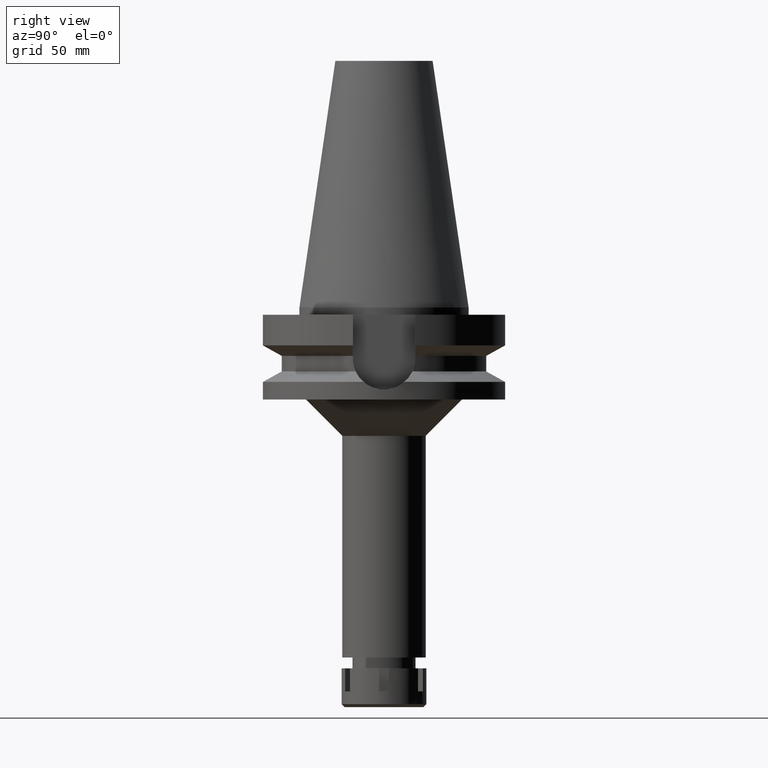
[diagram: clean part render]
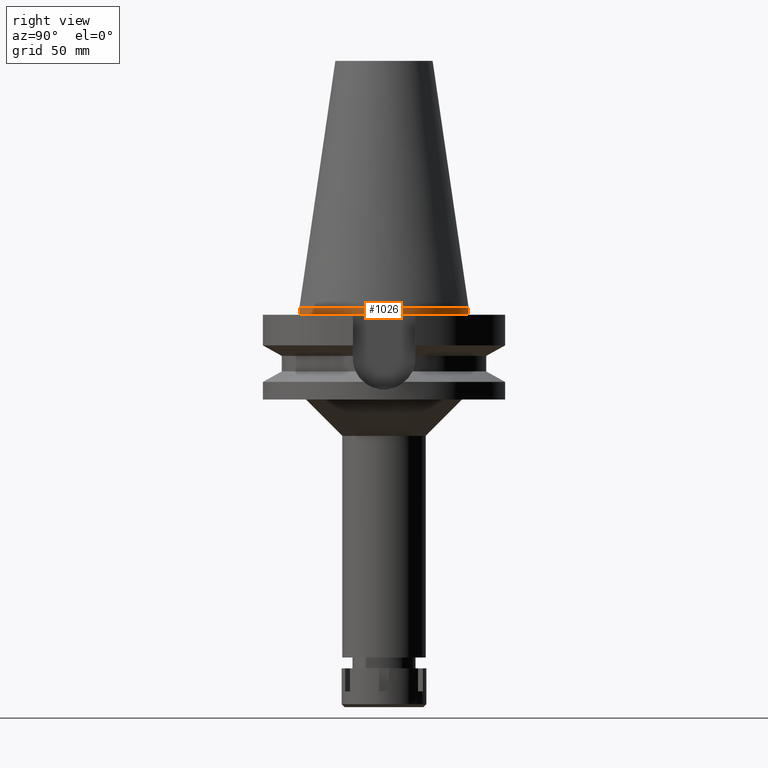
[diagram: same view with one face highlighted and labeled with its STEP entity id]
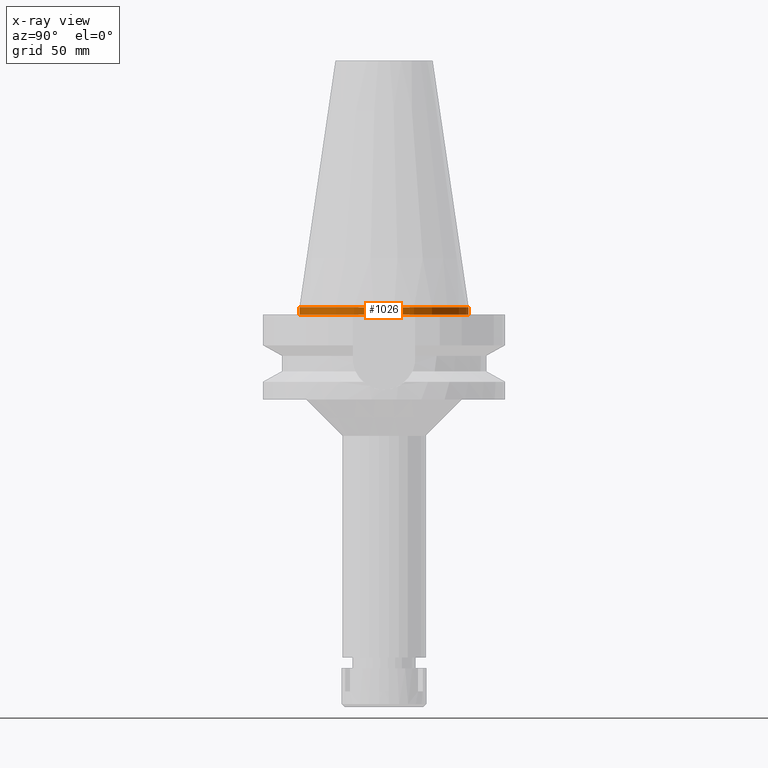
[diagram: x-ray of the same camera — body ghosted, the highlighted face saturated]
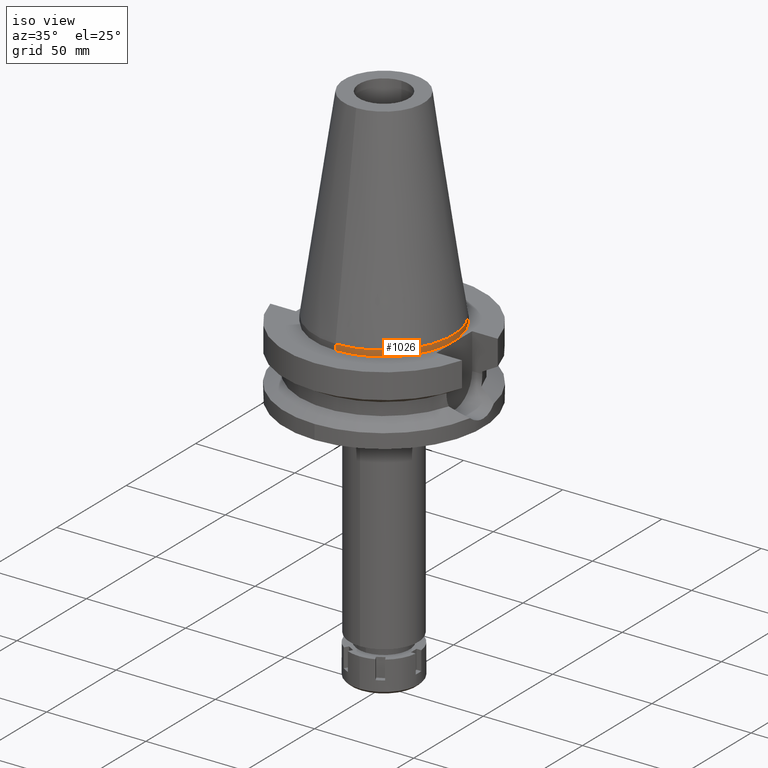
[diagram: same view with one face highlighted and labeled with its STEP entity id]
A machine part, right view. The second image highlights one B-rep face of the part: STEP entity #1026.
The next image is the same camera in x-ray: the body ghosted, the highlighted face saturated — about 0% of this face is hidden behind the body in this view.
A second angle (iso view) of the same face is appended — the face is thin or edge-on in the first view.
In plain terms, the highlighted cylindrical surface (partial cylindrical patch) has radius 34.925 mm, axis along (0, 0, -1).
Its self-contained STEP definition (entity closure, byte-faithful):
#91 = ORIENTED_EDGE ( 'NONE', *, *, #2660, .T. ) ;
#98 = DIRECTION ( 'NONE',  ( 0.0000000000000000000, 0.0000000000000000000, -1.000000000000000000 ) ) ;
#100 = LINE ( 'NONE', #3229, #3315 ) ;
#133 = DIRECTION ( 'NONE',  ( 0.0000000000000000000, 0.0000000000000000000, 1.000000000000000000 ) ) ;
#182 = EDGE_CURVE ( 'NONE', #455, #2553, #1459, .T. ) ;
#280 = CARTESIAN_POINT ( 'NONE',  ( 0.0000000000000000000, -34.92499999999999716, 5.258016244624999869E-13 ) ) ;
#287 = ORIENTED_EDGE ( 'NONE', *, *, #3525, .T. ) ;
#341 = DIRECTION ( 'NONE',  ( 0.0000000000000000000, 2.107943449421000052E-13, -1.000000000000000000 ) ) ;
#455 = VERTEX_POINT ( 'NONE', #280 ) ;
#684 = DIRECTION ( 'NONE',  ( 0.0000000000000000000, -1.000000000000000000, 0.0000000000000000000 ) ) ;
#694 = CIRCLE ( 'NONE', #3572, 34.92499999999999716 ) ;
#900 = CARTESIAN_POINT ( 'NONE',  ( 0.0000000000000000000, -34.92499999999999716, 5.258016244624999869E-13 ) ) ;
#955 = CARTESIAN_POINT ( 'NONE',  ( 0.0000000000000000000, 34.92499999999999716, 5.258016244624999869E-13 ) ) ;
#978 = CIRCLE ( 'NONE', #2469, 34.92499999999999716 ) ;
#997 = FACE_OUTER_BOUND ( 'NONE', #1820, .T. ) ;
#1026 = ADVANCED_FACE ( 'NONE', ( #997 ), #2441, .T. ) ;
#1428 = ORIENTED_EDGE ( 'NONE', *, *, #182, .T. ) ;
#1440 = VERTEX_POINT ( 'NONE', #3186 ) ;
#1459 = LINE ( 'NONE', #900, #1708 ) ;
#1708 = VECTOR ( 'NONE', #341, 1000.000000000000000 ) ;
#1781 = AXIS2_PLACEMENT_3D ( 'NONE', #3601, #98, #684 ) ;
#1818 = CARTESIAN_POINT ( 'NONE',  ( 0.0000000000000000000, 2.629806536488999751E-14, -3.000000000000000000 ) ) ;
#1820 = EDGE_LOOP ( 'NONE', ( #91, #1428, #287, #2561 ) ) ;
#2295 = DIRECTION ( 'NONE',  ( 0.0000000000000000000, -2.131628207279999907E-13, -1.000000000000000000 ) ) ;
#2441 = CYLINDRICAL_SURFACE ( 'NONE', #1781, 34.92499999999999716 ) ;
#2469 = AXIS2_PLACEMENT_3D ( 'NONE', #1818, #133, #2974 ) ;
#2553 = VERTEX_POINT ( 'NONE', #3667 ) ;
#2561 = ORIENTED_EDGE ( 'NONE', *, *, #3311, .F. ) ;
#2584 = CARTESIAN_POINT ( 'NONE',  ( 0.0000000000000000000, 1.847992019912999597E-14, 3.979039320256999774E-13 ) ) ;
#2606 = DIRECTION ( 'NONE',  ( 0.0000000000000000000, 1.000000000000000000, 0.0000000000000000000 ) ) ;
#2660 = EDGE_CURVE ( 'NONE', #2779, #455, #694, .T. ) ;
#2779 = VERTEX_POINT ( 'NONE', #955 ) ;
#2974 = DIRECTION ( 'NONE',  ( 0.0000000000000000000, -1.000000000000000000, 0.0000000000000000000 ) ) ;
#3186 = CARTESIAN_POINT ( 'NONE',  ( 0.0000000000000000000, 34.92499999999999716, -3.000000000000000000 ) ) ;
#3187 = DIRECTION ( 'NONE',  ( 0.0000000000000000000, 0.0000000000000000000, -1.000000000000000000 ) ) ;
#3229 = CARTESIAN_POINT ( 'NONE',  ( 0.0000000000000000000, 34.92499999999999716, 5.258016244624999869E-13 ) ) ;
#3311 = EDGE_CURVE ( 'NONE', #2779, #1440, #100, .T. ) ;
#3315 = VECTOR ( 'NONE', #2295, 1000.000000000000000 ) ;
#3525 = EDGE_CURVE ( 'NONE', #2553, #1440, #978, .T. ) ;
#3572 = AXIS2_PLACEMENT_3D ( 'NONE', #2584, #3187, #2606 ) ;
#3601 = CARTESIAN_POINT ( 'NONE',  ( 0.0000000000000000000, 2.629806536488999751E-14, 114.7399999999999949 ) ) ;
#3667 = CARTESIAN_POINT ( 'NONE',  ( 0.0000000000000000000, -34.92499999999999716, -3.000000000000000000 ) ) ;